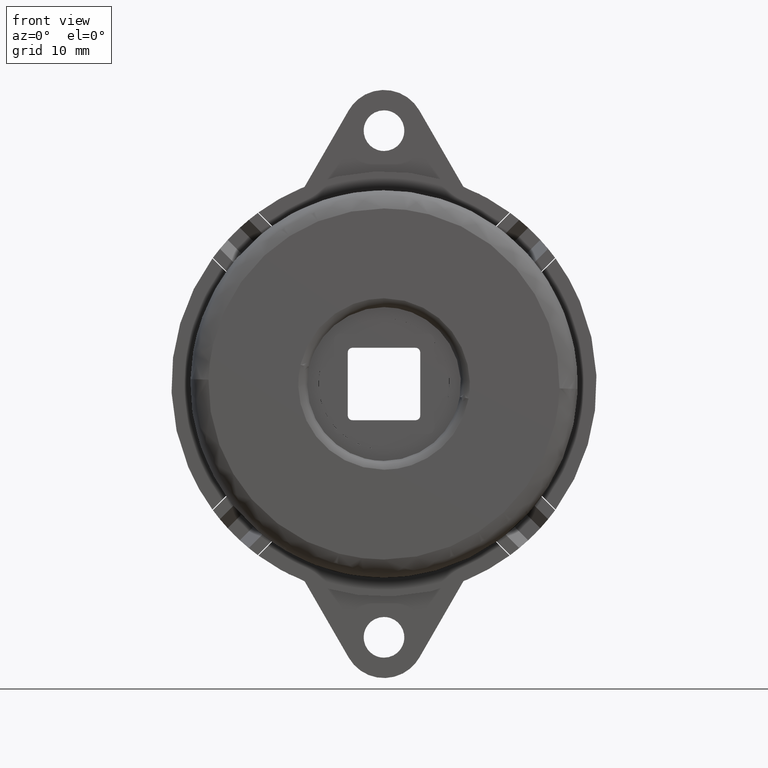
[diagram: clean part render]
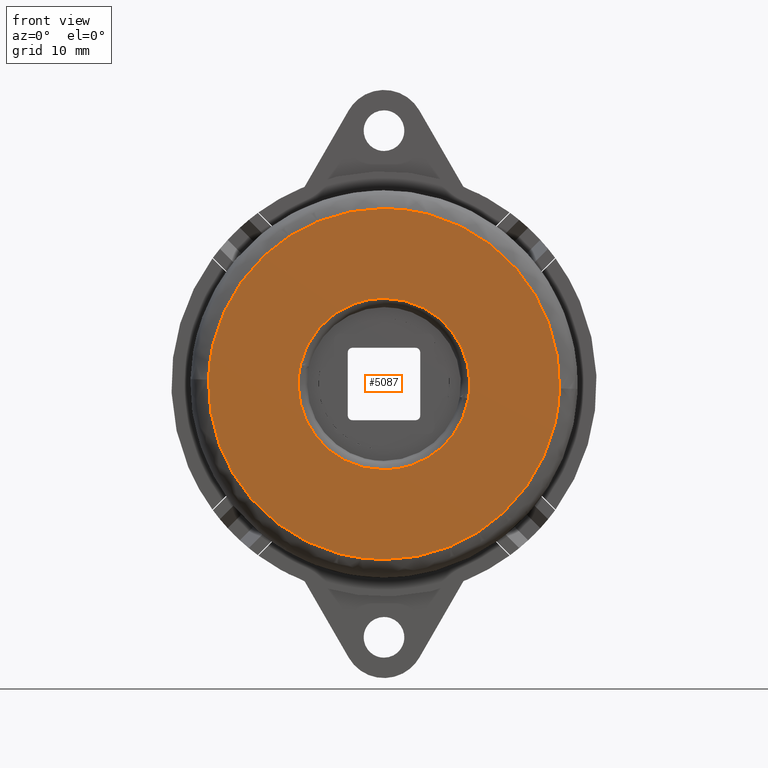
[diagram: same view with one face highlighted and labeled with its STEP entity id]
A machine part, front view. The second image highlights one B-rep face of the part: STEP entity #5087.
In plain terms, the highlighted face is a freeform B-spline surface patch.
Its self-contained STEP definition (entity closure, byte-faithful):
#2861=CARTESIAN_POINT('',(9.344787565812958,-10.300000000000050,-1.594200603325700));
#2862=VERTEX_POINT('',#2861);
#2876=CARTESIAN_POINT('',(0.0,-10.300000000000001,9.479795897113270));
#2877=VERTEX_POINT('',#2876);
#2878=CARTESIAN_POINT('',(0.0,-10.300000000000001,9.479795897113270));
#2879=CARTESIAN_POINT('',(9.479795897113270,-10.300000000000001,9.479795897113270));
#2880=CARTESIAN_POINT('',(9.479795897113270,-10.300000000000001,2.449213E-016));
#2881=CARTESIAN_POINT('',(9.479795897113270,-10.300000000000001,-0.802817038227413));
#2882=CARTESIAN_POINT('',(9.344787565812958,-10.300000000000050,-1.594200603325700));
#2890=(BOUNDED_CURVE()B_SPLINE_CURVE(2,(#2878,#2879,#2880,#2881,#2882),.UNSPECIFIED.,.F.,.U.)B_SPLINE_CURVE_WITH_KNOTS((3,2,3),(0.500000000000000,0.750000000000000,0.778926726035940),.UNSPECIFIED.)CURVE()GEOMETRIC_REPRESENTATION_ITEM()RATIONAL_B_SPLINE_CURVE((1.0,0.707106781186548,1.0,0.966110232406395,0.940063024993605))REPRESENTATION_ITEM(''));
#2891=EDGE_CURVE('',#2877,#2862,#2890,.T.);
#2893=CARTESIAN_POINT('',(-9.238315847874844,-10.300000000000050,2.126041039101757));
#2894=VERTEX_POINT('',#2893);
#2895=CARTESIAN_POINT('',(-9.238315847874844,-10.300000000000050,2.126041039101757));
#2896=CARTESIAN_POINT('',(-7.545974423818252,-10.300000000000001,9.479795897113272));
#2897=CARTESIAN_POINT('',(0.0,-10.300000000000001,9.479795897113270));
#2905=(BOUNDED_CURVE()B_SPLINE_CURVE(2,(#2895,#2896,#2897),.UNSPECIFIED.,.F.,.U.)B_SPLINE_CURVE_WITH_KNOTS((3,3),(0.288352912387351,0.500000000000000),.UNSPECIFIED.)CURVE()GEOMETRIC_REPRESENTATION_ITEM()RATIONAL_B_SPLINE_CURVE((0.923920098752310,0.752040013026554,1.0))REPRESENTATION_ITEM(''));
#2906=EDGE_CURVE('',#2894,#2877,#2905,.T.);
#2999=CARTESIAN_POINT('',(0.0,-10.300000000000001,-9.479795897113270));
#3000=VERTEX_POINT('',#2999);
#3001=CARTESIAN_POINT('',(0.0,-10.300000000000001,-9.479795897113270));
#3002=CARTESIAN_POINT('',(-9.479795897113270,-10.300000000000001,-9.479795897113270));
#3003=CARTESIAN_POINT('',(-9.479795897113270,-10.300000000000001,2.449213E-016));
#3004=CARTESIAN_POINT('',(-9.479795897113270,-10.300000000000001,1.076734416283881));
#3005=CARTESIAN_POINT('',(-9.238315847874844,-10.300000000000050,2.126041039101757));
#3013=(BOUNDED_CURVE()B_SPLINE_CURVE(2,(#3001,#3002,#3003,#3004,#3005),.UNSPECIFIED.,.F.,.U.)B_SPLINE_CURVE_WITH_KNOTS((3,2,3),(0.0,0.250000000000000,0.288352912387351),.UNSPECIFIED.)CURVE()GEOMETRIC_REPRESENTATION_ITEM()RATIONAL_B_SPLINE_CURVE((1.0,0.707106781186548,1.0,0.955066768159994,0.923920098752310))REPRESENTATION_ITEM(''));
#3014=EDGE_CURVE('',#3000,#2894,#3013,.T.);
#3016=CARTESIAN_POINT('',(9.344787565812958,-10.300000000000050,-1.594200603325700));
#3017=CARTESIAN_POINT('',(7.999522018678333,-10.300000000000001,-9.479795897113270));
#3018=CARTESIAN_POINT('',(0.0,-10.300000000000001,-9.479795897113270));
#3026=(BOUNDED_CURVE()B_SPLINE_CURVE(2,(#3016,#3017,#3018),.UNSPECIFIED.,.F.,.U.)B_SPLINE_CURVE_WITH_KNOTS((3,3),(0.778926726035940,1.0),.UNSPECIFIED.)CURVE()GEOMETRIC_REPRESENTATION_ITEM()RATIONAL_B_SPLINE_CURVE((0.940063024993604,0.740996548780153,1.0))REPRESENTATION_ITEM(''));
#3027=EDGE_CURVE('',#2862,#3000,#3026,.T.);
#3058=CARTESIAN_POINT('',(19.393873274456869,-10.300000000000050,-0.487523851788498));
#3059=VERTEX_POINT('',#3058);
#3073=CARTESIAN_POINT('',(0.0,-10.300000000000001,-19.399999999999999));
#3074=VERTEX_POINT('',#3073);
#3075=CARTESIAN_POINT('',(0.0,-10.300000000000001,-19.399999999999999));
#3076=CARTESIAN_POINT('',(18.918450797654149,-10.300000000000001,-19.400000000000002));
#3077=CARTESIAN_POINT('',(19.393873274456880,-10.300000000000047,-0.487523851788498));
#3085=(BOUNDED_CURVE()B_SPLINE_CURVE(2,(#3075,#3076,#3077),.UNSPECIFIED.,.F.,.U.)B_SPLINE_CURVE_WITH_KNOTS((3,3),(0.0,0.245579891767492),.UNSPECIFIED.)CURVE()GEOMETRIC_REPRESENTATION_ITEM()RATIONAL_B_SPLINE_CURVE((1.0,0.712285260097440,0.989826157676342))REPRESENTATION_ITEM(''));
#3086=EDGE_CURVE('',#3074,#3059,#3085,.T.);
#3088=CARTESIAN_POINT('',(-19.393873274456869,-10.300000000000050,0.487523851788507));
#3089=VERTEX_POINT('',#3088);
#3090=CARTESIAN_POINT('',(-19.393873274456880,-10.300000000000047,0.487523851788507));
#3091=CARTESIAN_POINT('',(-19.399999999999995,-10.300000000000004,0.243800423321956));
#3092=CARTESIAN_POINT('',(-19.399999999999999,-10.300000000000001,2.449213E-016));
#3093=CARTESIAN_POINT('',(-19.400000000000009,-10.300000000000001,-19.400000000000009));
#3094=CARTESIAN_POINT('',(0.0,-10.300000000000001,-19.399999999999999));
#3102=(BOUNDED_CURVE()B_SPLINE_CURVE(2,(#3090,#3091,#3092,#3093,#3094),.UNSPECIFIED.,.F.,.U.)B_SPLINE_CURVE_WITH_KNOTS((3,2,3),(0.745579891767492,0.750000000000000,1.0),.UNSPECIFIED.)CURVE()GEOMETRIC_REPRESENTATION_ITEM()RATIONAL_B_SPLINE_CURVE((0.989826157676342,0.994821521089107,1.0,0.707106781186548,1.0))REPRESENTATION_ITEM(''));
#3103=EDGE_CURVE('',#3089,#3074,#3102,.T.);
#3147=CARTESIAN_POINT('',(0.0,-10.300000000000001,19.399999999999999));
#3148=VERTEX_POINT('',#3147);
#3149=CARTESIAN_POINT('',(0.0,-10.300000000000001,19.399999999999999));
#3150=CARTESIAN_POINT('',(-18.918450797654071,-10.300000000000001,19.400000000000006));
#3151=CARTESIAN_POINT('',(-19.393873274456876,-10.300000000000054,0.487523851788507));
#3159=(BOUNDED_CURVE()B_SPLINE_CURVE(2,(#3149,#3150,#3151),.UNSPECIFIED.,.F.,.U.)B_SPLINE_CURVE_WITH_KNOTS((3,3),(0.500000000000000,0.745579891767491),.UNSPECIFIED.)CURVE()GEOMETRIC_REPRESENTATION_ITEM()RATIONAL_B_SPLINE_CURVE((1.0,0.712285260097441,0.989826157676341))REPRESENTATION_ITEM(''));
#3160=EDGE_CURVE('',#3148,#3089,#3159,.T.);
#3162=CARTESIAN_POINT('',(19.393873274456872,-10.300000000000054,-0.487523851788498));
#3163=CARTESIAN_POINT('',(19.400000000000002,-10.300000000000001,-0.243800423321948));
#3164=CARTESIAN_POINT('',(19.399999999999999,-10.300000000000001,2.449213E-016));
#3165=CARTESIAN_POINT('',(19.400000000000009,-10.300000000000001,19.400000000000009));
#3166=CARTESIAN_POINT('',(0.0,-10.300000000000001,19.399999999999999));
#3174=(BOUNDED_CURVE()B_SPLINE_CURVE(2,(#3162,#3163,#3164,#3165,#3166),.UNSPECIFIED.,.F.,.U.)B_SPLINE_CURVE_WITH_KNOTS((3,2,3),(0.245579891767492,0.250000000000000,0.500000000000000),.UNSPECIFIED.)CURVE()GEOMETRIC_REPRESENTATION_ITEM()RATIONAL_B_SPLINE_CURVE((0.989826157676342,0.994821521089108,1.0,0.707106781186548,1.0))REPRESENTATION_ITEM(''));
#3175=EDGE_CURVE('',#3059,#3148,#3174,.T.);
#5070=CARTESIAN_POINT('',(-21.331321139396930,-10.300000000000001,21.338059560571430));
#5071=CARTESIAN_POINT('',(-21.331321139396930,-10.300000000000001,-21.338060948167559));
#5072=CARTESIAN_POINT('',(21.331322179765369,-10.300000000000001,21.338059560571430));
#5073=CARTESIAN_POINT('',(21.331322179765369,-10.300000000000001,-21.338060948167559));
#5074=B_SPLINE_SURFACE_WITH_KNOTS('',1,1,((#5070,#5072),(#5071,#5073)),.UNSPECIFIED.,.F.,.F.,.U.,(2,2),(2,2),(0.0,42.676120508738990),(0.0,42.662643319162299),.UNSPECIFIED.);
#5075=ORIENTED_EDGE('',*,*,#3086,.T.);
#5076=ORIENTED_EDGE('',*,*,#3175,.T.);
#5077=ORIENTED_EDGE('',*,*,#3160,.T.);
#5078=ORIENTED_EDGE('',*,*,#3103,.T.);
#5079=EDGE_LOOP('',(#5075,#5076,#5077,#5078));
#5080=FACE_OUTER_BOUND('',#5079,.T.);
#5081=ORIENTED_EDGE('',*,*,#3014,.T.);
#5082=ORIENTED_EDGE('',*,*,#2906,.T.);
#5083=ORIENTED_EDGE('',*,*,#2891,.T.);
#5084=ORIENTED_EDGE('',*,*,#3027,.T.);
#5085=EDGE_LOOP('',(#5081,#5082,#5083,#5084));
#5086=FACE_BOUND('',#5085,.T.);
#5087=ADVANCED_FACE('',(#5080,#5086),#5074,.T.);